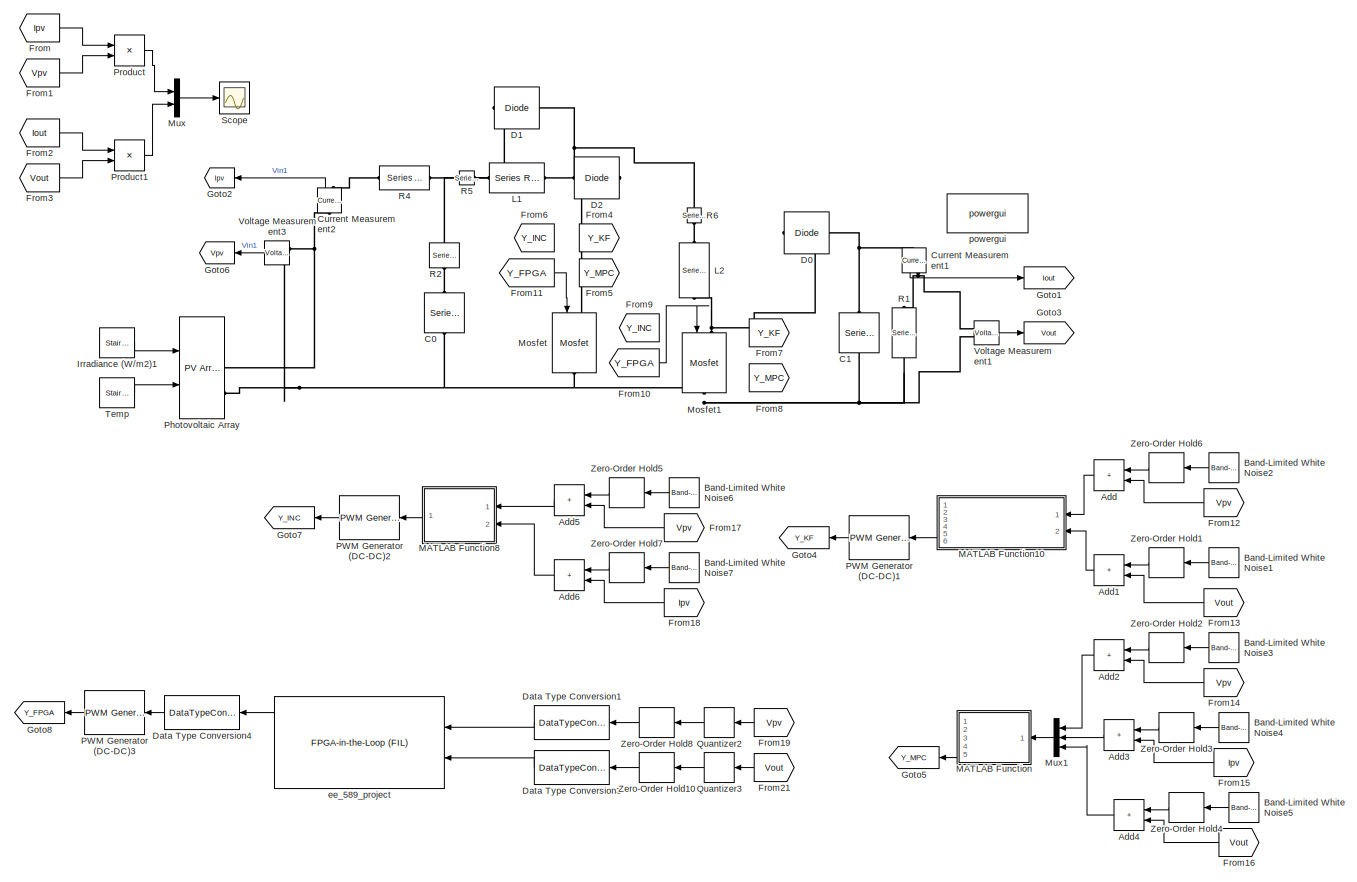
[diagram: root canvas - part 1/1, most of the canvas]
MODEL slx_83b59a19a257
KIND model
CONFIG AbsTol = auto
CONFIG EnableMultiTasking = off
CONFIG FixedStep = auto
CONFIG MaxStep = auto
CONFIG MinStep = auto
CONFIG RelTol = 1e-3
CONFIG SampleTimeConstraint = Unconstrained
CONFIG SolverName = VariableStepAuto
CONFIG StartTime = 0.0
CONFIG StopTime = 10.0
BLOCK [Reference]  Temp  REF=powerlib_meascontrol/Pulse & Signal
Generators/Stair
Generator
  NameLocation = top
  Ports = [0, 1]
  SourceBlock = powerlib_meascontrol/Pulse & Signal\nGenerators/Stair\nGenerator
  SourceProductBaseCode = PS
  SourceType = Stair Generator
BLOCK [Sum] Add
  IconShape = rectangular
  Ports = [2, 1]
BLOCK [Sum] Add1
  IconShape = rectangular
  Ports = [2, 1]
BLOCK [Sum] Add2
  IconShape = rectangular
  Ports = [2, 1]
BLOCK [Sum] Add3
  IconShape = rectangular
  Ports = [2, 1]
BLOCK [Sum] Add4
  IconShape = rectangular
  Ports = [2, 1]
BLOCK [Sum] Add5
  IconShape = rectangular
  Ports = [2, 1]
BLOCK [Sum] Add6
  IconShape = rectangular
  Ports = [2, 1]
BLOCK [Reference] Band-Limited White Noise1  REF=simulink/Sources/Band-Limited
White Noise
  Commented = on
  Ports = [0, 1]
  SourceBlock = simulink/Sources/Band-Limited\nWhite Noise
  SourceProductBaseCode = SL
  SourceType = Band-Limited White Noise.
BLOCK [Reference] Band-Limited White Noise2  REF=simulink/Sources/Band-Limited
White Noise
  Commented = on
  Ports = [0, 1]
  SourceBlock = simulink/Sources/Band-Limited\nWhite Noise
  SourceProductBaseCode = SL
  SourceType = Band-Limited White Noise.
BLOCK [Reference] Band-Limited White Noise3  REF=simulink/Sources/Band-Limited
White Noise
  Commented = on
  Ports = [0, 1]
  SourceBlock = simulink/Sources/Band-Limited\nWhite Noise
  SourceProductBaseCode = SL
  SourceType = Band-Limited White Noise.
BLOCK [Reference] Band-Limited White Noise4  REF=simulink/Sources/Band-Limited
White Noise
  Commented = on
  Ports = [0, 1]
  SourceBlock = simulink/Sources/Band-Limited\nWhite Noise
  SourceProductBaseCode = SL
  SourceType = Band-Limited White Noise.
BLOCK [Reference] Band-Limited White Noise5  REF=simulink/Sources/Band-Limited
White Noise
  Commented = on
  Ports = [0, 1]
  SourceBlock = simulink/Sources/Band-Limited\nWhite Noise
  SourceProductBaseCode = SL
  SourceType = Band-Limited White Noise.
BLOCK [Reference] Band-Limited White Noise6  REF=simulink/Sources/Band-Limited
White Noise
  Commented = on
  Ports = [0, 1]
  SourceBlock = simulink/Sources/Band-Limited\nWhite Noise
  SourceProductBaseCode = SL
  SourceType = Band-Limited White Noise.
BLOCK [Reference] Band-Limited White Noise7  REF=simulink/Sources/Band-Limited
White Noise
  Commented = on
  Ports = [0, 1]
  SourceBlock = simulink/Sources/Band-Limited\nWhite Noise
  SourceProductBaseCode = SL
  SourceType = Band-Limited White Noise.
BLOCK [Reference] C0  REF=powerlib/Elements/Series RLC Branch
  NameLocation = left
  Ports = [0, 0, 0, 0, 0, 1, 1]
  SourceBlock = powerlib/Elements/Series RLC Branch
  SourceProductBaseCode = PS
  SourceType = Series RLC Branch
BLOCK [Reference] C1  REF=powerlib/Elements/Series RLC Branch
  NameLocation = left
  Ports = [0, 0, 0, 0, 0, 1, 1]
  SourceBlock = powerlib/Elements/Series RLC Branch
  SourceProductBaseCode = PS
  SourceType = Series RLC Branch
BLOCK [Reference] Current Measurement1  REF=powerlib/Measurements/Current Measurement
  NameLocation = right
  Ports = [0, 1, 0, 0, 0, 1, 1]
  SourceBlock = powerlib/Measurements/Current Measurement
  SourceProductBaseCode = PS
  SourceType = Current Measurement
  UserDataPersistent = on
BLOCK [Reference] Current Measurement2  REF=powerlib/Measurements/Current Measurement
  NameLocation = right
  Ports = [0, 1, 0, 0, 0, 1, 1]
  SourceBlock = powerlib/Measurements/Current Measurement
  SourceProductBaseCode = PS
  SourceType = Current Measurement
  UserDataPersistent = on
BLOCK [Reference] D0  REF=powerlib/Power
Electronics/Diode
  Ports = [0, 0, 0, 0, 0, 1, 1]
  SourceBlock = powerlib/Power\nElectronics/Diode
  SourceProductBaseCode = PS
  SourceType = Diode
BLOCK [Reference] D1  REF=powerlib/Power
Electronics/Diode
  Ports = [0, 0, 0, 0, 0, 1, 1]
  SourceBlock = powerlib/Power\nElectronics/Diode
  SourceProductBaseCode = PS
  SourceType = Diode
BLOCK [Reference] D2  REF=powerlib/Power
Electronics/Diode
  Ports = [0, 0, 0, 0, 0, 1, 1]
  SourceBlock = powerlib/Power\nElectronics/Diode
  SourceProductBaseCode = PS
  SourceType = Diode
BLOCK [DataTypeConversion] Data Type Conversion1
  OutDataTypeStr = fixdt(1,32,16)
  RndMeth = Floor
  SaturateOnIntegerOverflow = off
BLOCK [DataTypeConversion] Data Type Conversion3
  OutDataTypeStr = fixdt(1,32,16)
  RndMeth = Floor
  SaturateOnIntegerOverflow = off
BLOCK [DataTypeConversion] Data Type Conversion4
  OutDataTypeStr = double
  RndMeth = Floor
  SaturateOnIntegerOverflow = off
BLOCK [From] From
  GotoTag = Ipv
BLOCK [From] From1
  GotoTag = Vpv
BLOCK [From] From10
  GotoTag = Y_FPGA
BLOCK [From] From11
  GotoTag = Y_FPGA
BLOCK [From] From12
  GotoTag = Vpv
BLOCK [From] From13
  GotoTag = Vout
BLOCK [From] From14
  GotoTag = Vpv
BLOCK [From] From15
  GotoTag = Ipv
BLOCK [From] From16
  GotoTag = Vout
BLOCK [From] From17
  GotoTag = Vpv
BLOCK [From] From18
  GotoTag = Ipv
BLOCK [From] From19
  GotoTag = Vpv
BLOCK [From] From2
  GotoTag = Iout
BLOCK [From] From21
  GotoTag = Vout
BLOCK [From] From3
  GotoTag = Vout
BLOCK [From] From4
  GotoTag = Y_KF
BLOCK [From] From5
  GotoTag = Y_MPC
BLOCK [From] From6
  GotoTag = Y_INC
BLOCK [From] From7
  GotoTag = Y_KF
BLOCK [From] From8
  GotoTag = Y_MPC
BLOCK [From] From9
  GotoTag = Y_INC
BLOCK [Goto] Goto1
  GotoTag = Iout
BLOCK [Goto] Goto2
  GotoTag = Ipv
BLOCK [Goto] Goto3
  GotoTag = Vout
BLOCK [Goto] Goto4
  GotoTag = Y_KF
BLOCK [Goto] Goto5
  GotoTag = Y_MPC
BLOCK [Goto] Goto6
  GotoTag = Vpv
BLOCK [Goto] Goto7
  GotoTag = Y_INC
BLOCK [Goto] Goto8
  GotoTag = Y_FPGA
BLOCK [Reference] Irradiance (W//m2)1  REF=powerlib_meascontrol/Pulse & Signal
Generators/Stair
Generator
  NameLocation = top
  Ports = [0, 1]
  SourceBlock = powerlib_meascontrol/Pulse & Signal\nGenerators/Stair\nGenerator
  SourceProductBaseCode = PS
  SourceType = Stair Generator
BLOCK [Reference] L1  REF=powerlib/Elements/Series RLC Branch
  NameLocation = top
  Ports = [0, 0, 0, 0, 0, 1, 1]
  SourceBlock = powerlib/Elements/Series RLC Branch
  SourceProductBaseCode = PS
  SourceType = Series RLC Branch
BLOCK [Reference] L2  REF=powerlib/Elements/Series RLC Branch
  NameLocation = right
  Ports = [0, 0, 0, 0, 0, 1, 1]
  SourceBlock = powerlib/Elements/Series RLC Branch
  SourceProductBaseCode = PS
  SourceType = Series RLC Branch
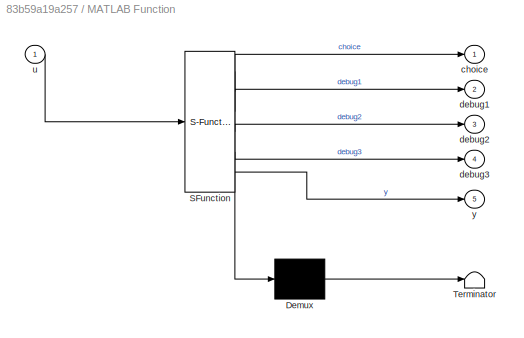
BLOCK [SubSystem] MATLAB Function
  ErrorFcn = Stateflow.Translate.translate
  PermitHierarchicalResolution = ExplicitOnly
  Ports = [1, 5]
  RequestExecContextInheritance = off
  SFBlockType = MATLAB Function
  SystemSampleTime = 15e-6
  TreatAsAtomicUnit = on
BLOCK [Demux] MATLAB Function/ Demux 
  Outputs = 1
  Ports = [1, 1]
BLOCK [S-Function] MATLAB Function/ SFunction 
  EnableBusSupport = on
  FunctionName = sf_sfun
  PortCounts = [1 6]
  Ports = [1, 6]
  SFcnIsStateOwnerBlock = off
  SFunctionDeploymentMode = off
  Tag = Stateflow S-Function 2
BLOCK [Terminator] MATLAB Function/ Terminator 
BLOCK [Outport] MATLAB Function/choice
BLOCK [Outport] MATLAB Function/debug1
  Port = 2
BLOCK [Outport] MATLAB Function/debug2
  Port = 3
BLOCK [Outport] MATLAB Function/debug3
  Port = 4
BLOCK [Inport] MATLAB Function/u
BLOCK [Outport] MATLAB Function/y
  Port = 5
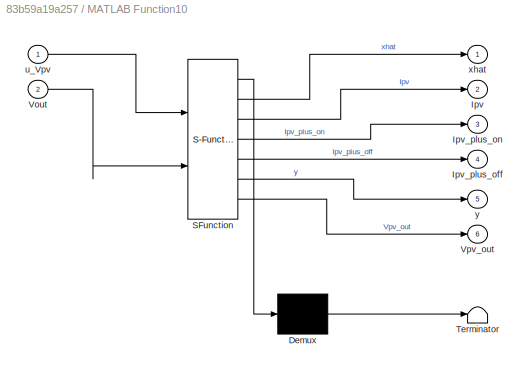
BLOCK [SubSystem] MATLAB Function10
  ErrorFcn = Stateflow.Translate.translate
  PermitHierarchicalResolution = ExplicitOnly
  Ports = [2, 6]
  RequestExecContextInheritance = off
  SFBlockType = MATLAB Function
  SystemSampleTime = 15e-6
  TreatAsAtomicUnit = on
BLOCK [Demux] MATLAB Function10/ Demux 
  Outputs = 1
  Ports = [1, 1]
BLOCK [S-Function] MATLAB Function10/ SFunction 
  EnableBusSupport = on
  FunctionName = sf_sfun
  PortCounts = [2 7]
  Ports = [2, 7]
  SFcnIsStateOwnerBlock = off
  SFunctionDeploymentMode = off
  Tag = Stateflow S-Function 11
BLOCK [Terminator] MATLAB Function10/ Terminator 
BLOCK [Outport] MATLAB Function10/Ipv
  Port = 2
BLOCK [Outport] MATLAB Function10/Ipv_plus_off
  Port = 4
BLOCK [Outport] MATLAB Function10/Ipv_plus_on
  Port = 3
BLOCK [Inport] MATLAB Function10/Vout
  Port = 2
BLOCK [Outport] MATLAB Function10/Vpv_out
  Port = 6
BLOCK [Inport] MATLAB Function10/u_Vpv
BLOCK [Outport] MATLAB Function10/xhat
BLOCK [Outport] MATLAB Function10/y
  Port = 5
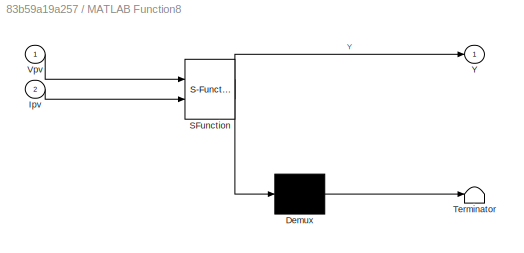
BLOCK [SubSystem] MATLAB Function8
  ErrorFcn = Stateflow.Translate.translate
  PermitHierarchicalResolution = ExplicitOnly
  Ports = [2, 1]
  RequestExecContextInheritance = off
  SFBlockType = MATLAB Function
  SystemSampleTime = 15e-6
  TreatAsAtomicUnit = on
BLOCK [Demux] MATLAB Function8/ Demux 
  Outputs = 1
  Ports = [1, 1]
BLOCK [S-Function] MATLAB Function8/ SFunction 
  EnableBusSupport = on
  FunctionName = sf_sfun
  PortCounts = [2 2]
  Ports = [2, 2]
  SFcnIsStateOwnerBlock = off
  SFunctionDeploymentMode = off
  Tag = Stateflow S-Function 9
BLOCK [Terminator] MATLAB Function8/ Terminator 
BLOCK [Inport] MATLAB Function8/Ipv
  Port = 2
BLOCK [Inport] MATLAB Function8/Vpv
BLOCK [Outport] MATLAB Function8/Y
BLOCK [Reference] Mosfet  REF=powerlib/Power
Electronics/Mosfet
  NameLocation = left
  Ports = [1, 0, 0, 0, 0, 1, 1]
  SourceBlock = powerlib/Power\nElectronics/Mosfet
  SourceProductBaseCode = PS
  SourceType = Mosfet
BLOCK [Reference] Mosfet1  REF=powerlib/Power
Electronics/Mosfet
  NameLocation = left
  Ports = [1, 0, 0, 0, 0, 1, 1]
  SourceBlock = powerlib/Power\nElectronics/Mosfet
  SourceProductBaseCode = PS
  SourceType = Mosfet
BLOCK [Mux] Mux
  DisplayOption = bar
  Inputs = 2
  Ports = [2, 1]
BLOCK [Mux] Mux1
  DisplayOption = bar
  Inputs = 3
  Ports = [3, 1]
BLOCK [Reference] PWM Generator (DC-DC)1  REF=powerlib_meascontrol/Pulse & Signal
Generators/PWM Generator
(DC-DC)
  NameLocation = top
  Ports = [1, 1]
  SourceBlock = powerlib_meascontrol/Pulse & Signal\nGenerators/PWM Generator\n(DC-DC)
  SourceProductBaseCode = PS
  SourceType = PWM Generator (DC-DC)
BLOCK [Reference] PWM Generator (DC-DC)2  REF=powerlib_meascontrol/Pulse & Signal
Generators/PWM Generator
(DC-DC)
  NameLocation = top
  Ports = [1, 1]
  SourceBlock = powerlib_meascontrol/Pulse & Signal\nGenerators/PWM Generator\n(DC-DC)
  SourceProductBaseCode = PS
  SourceType = PWM Generator (DC-DC)
BLOCK [Reference] PWM Generator (DC-DC)3  REF=powerlib_meascontrol/Pulse & Signal
Generators/PWM Generator
(DC-DC)
  NameLocation = top
  Ports = [1, 1]
  SourceBlock = powerlib_meascontrol/Pulse & Signal\nGenerators/PWM Generator\n(DC-DC)
  SourceProductBaseCode = PS
  SourceType = PWM Generator (DC-DC)
BLOCK [Reference] Photovoltaic Array  REF=re_lib/Solar/PV Array
  AttributesFormatString = %<ModuleName>\n%<Nser>-module string\n%<Npar> parallel strings
  Ports = [2, 1, 0, 0, 0, 0, 2]
  SourceBlock = re_lib/Solar/PV Array
  SourceProductBaseCode = PS
  SourceType = PV array
BLOCK [Product] Product
  Ports = [2, 1]
BLOCK [Product] Product1
  Ports = [2, 1]
BLOCK [Quantizer] Quantizer2
  QuantizationInterval = 15e-6
BLOCK [Quantizer] Quantizer3
  QuantizationInterval = 15e-6
BLOCK [Reference] R1  REF=powerlib/Elements/Series RLC Branch
  NameLocation = left
  Ports = [0, 0, 0, 0, 0, 1, 1]
  SourceBlock = powerlib/Elements/Series RLC Branch
  SourceProductBaseCode = PS
  SourceType = Series RLC Branch
BLOCK [Reference] R2  REF=powerlib/Elements/Series RLC Branch
  NameLocation = left
  Ports = [0, 0, 0, 0, 0, 1, 1]
  SourceBlock = powerlib/Elements/Series RLC Branch
  SourceProductBaseCode = PS
  SourceType = Series RLC Branch
BLOCK [Reference] R4  REF=powerlib/Elements/Series RLC Branch
  Ports = [0, 0, 0, 0, 0, 1, 1]
  SourceBlock = powerlib/Elements/Series RLC Branch
  SourceProductBaseCode = PS
  SourceType = Series RLC Branch
BLOCK [Reference] R5  REF=powerlib/Elements/Series RLC Branch
  Ports = [0, 0, 0, 0, 0, 1, 1]
  SourceBlock = powerlib/Elements/Series RLC Branch
  SourceProductBaseCode = PS
  SourceType = Series RLC Branch
BLOCK [Reference] R6  REF=powerlib/Elements/Series RLC Branch
  NameLocation = left
  Ports = [0, 0, 0, 0, 0, 1, 1]
  SourceBlock = powerlib/Elements/Series RLC Branch
  SourceProductBaseCode = PS
  SourceType = Series RLC Branch
BLOCK [Scope] Scope
  Floating = off
  NumInputPorts = 1
  Ports = [1]
  ScopeSpecificationString = Simulink.scopes.TimeScopeBlockCfg('CurrentConfiguration', extmgr.ConfigurationSet(extmgr.Configuration('Core','General UI',true),extmgr.Configuration('Core','Source UI',true),extmgr.Configuration('Sources','WiredSimulink',true),extmgr.Configuration('Visuals','Time Domain',true,'SerializedDisplays',{struct('MinYLimReal','-27.20201','MaxYLimReal','244.81812','YLabelReal','','MinYLimMag','0.00000','M...<+1392ch>
BLOCK [Reference] Voltage Measurement1  REF=powerlib/Measurements/Voltage Measurement
  Ports = [0, 1, 0, 0, 0, 2]
  SourceBlock = powerlib/Measurements/Voltage Measurement
  SourceProductBaseCode = PS
  SourceType = Voltage Measurement
  UserDataPersistent = on
BLOCK [Reference] Voltage Measurement3  REF=powerlib/Measurements/Voltage Measurement
  Ports = [0, 1, 0, 0, 0, 2]
  SourceBlock = powerlib/Measurements/Voltage Measurement
  SourceProductBaseCode = PS
  SourceType = Voltage Measurement
  UserDataPersistent = on
BLOCK [ZeroOrderHold] Zero-Order Hold1
  SampleTime = 15e-6
BLOCK [ZeroOrderHold] Zero-Order Hold10
  SampleTime = 200e-9
BLOCK [ZeroOrderHold] Zero-Order Hold2
  SampleTime = 15e-6
BLOCK [ZeroOrderHold] Zero-Order Hold3
  SampleTime = 15e-6
BLOCK [ZeroOrderHold] Zero-Order Hold4
  SampleTime = 15e-6
BLOCK [ZeroOrderHold] Zero-Order Hold5
  SampleTime = 15e-6
BLOCK [ZeroOrderHold] Zero-Order Hold6
  SampleTime = 15e-6
BLOCK [ZeroOrderHold] Zero-Order Hold7
  SampleTime = 15e-6
BLOCK [ZeroOrderHold] Zero-Order Hold8
  SampleTime = 200e-9
BLOCK [Reference] ee_589_project  REF=fillib/FPGA-in-the-Loop (FIL)
  Ports = [2, 3]
  SourceBlock = fillib/FPGA-in-the-Loop (FIL)
  SourceProductBaseCode = ES,HD
  SourceType = FPGA-in-the-Loop (FIL)
  UserDataPersistent = on
BLOCK [Reference] powergui  REF=powerlib/powergui
  Ports = []
  Priority = 1
  SourceBlock = powerlib/powergui
  SourceProductBaseCode = PS
  SourceType = PSB option menu block
LINE  Temp:1 -> Photovoltaic Array:2
LINE Add1:1 -> MATLAB Function10:2
LINE Add2:1 -> Mux1:1
LINE Add3:1 -> Mux1:2
LINE Add4:1 -> Mux1:3
LINE Add5:1 -> MATLAB Function8:1
LINE Add6:1 -> MATLAB Function8:2
LINE Add:1 -> MATLAB Function10:1
LINE Band-Limited White Noise1:1 -> Zero-Order Hold1:1
LINE Band-Limited White Noise2:1 -> Zero-Order Hold6:1
LINE Band-Limited White Noise3:1 -> Zero-Order Hold2:1
LINE Band-Limited White Noise4:1 -> Zero-Order Hold3:1
LINE Band-Limited White Noise5:1 -> Zero-Order Hold4:1
LINE Band-Limited White Noise6:1 -> Zero-Order Hold5:1
LINE Band-Limited White Noise7:1 -> Zero-Order Hold7:1
LINE Current Measurement1:1 -> Goto1:1
LINE Current Measurement2:1 -> Goto2:1
LINE Data Type Conversion1:1 -> ee_589_project:1
LINE Data Type Conversion3:1 -> ee_589_project:2
LINE Data Type Conversion4:1 -> PWM Generator (DC-DC)3:1
LINE From10:1 -> Mosfet1:1
LINE From11:1 -> Mosfet:1
LINE From12:1 -> Add:2
LINE From13:1 -> Add1:2
LINE From14:1 -> Add2:2
LINE From15:1 -> Add3:2
LINE From16:1 -> Add4:2
LINE From17:1 -> Add5:2
LINE From18:1 -> Add6:2
LINE From19:1 -> Quantizer2:1
LINE From1:1 -> Product:2
LINE From21:1 -> Quantizer3:1
LINE From2:1 -> Product1:1
LINE From3:1 -> Product1:2
LINE From:1 -> Product:1
LINE Irradiance (W//m2)1:1 -> Photovoltaic Array:1
LINE MATLAB Function10:5 -> PWM Generator (DC-DC)1:1
LINE MATLAB Function8:1 -> PWM Generator (DC-DC)2:1
LINE MATLAB Function:5 -> Goto5:1
LINE Mux1:1 -> MATLAB Function:1
LINE Mux:1 -> Scope:1
LINE PWM Generator (DC-DC)1:1 -> Goto4:1
LINE PWM Generator (DC-DC)2:1 -> Goto7:1
LINE PWM Generator (DC-DC)3:1 -> Goto8:1
LINE Product1:1 -> Mux:2
LINE Product:1 -> Mux:1
LINE Quantizer2:1 -> Zero-Order Hold8:1
LINE Quantizer3:1 -> Zero-Order Hold10:1
LINE Voltage Measurement1:1 -> Goto3:1
LINE Voltage Measurement3:1 -> Goto6:1
LINE Zero-Order Hold10:1 -> Data Type Conversion3:1
LINE Zero-Order Hold1:1 -> Add1:1
LINE Zero-Order Hold2:1 -> Add2:1
LINE Zero-Order Hold3:1 -> Add3:1
LINE Zero-Order Hold4:1 -> Add4:1
LINE Zero-Order Hold5:1 -> Add5:1
LINE Zero-Order Hold6:1 -> Add:1
LINE Zero-Order Hold7:1 -> Add6:1
LINE Zero-Order Hold8:1 -> Data Type Conversion1:1
LINE ee_589_project:1 -> Data Type Conversion4:1
PLINE C0:LConn1 -- R2:RConn1
PNET net1: C0:RConn1 -- C1:RConn1 -- Mosfet1:RConn1 -- Mosfet:RConn1 -- Photovoltaic Array:RConn2 -- R1:RConn1 -- Voltage Measurement1:LConn2 -- Voltage Measurement3:LConn2
PNET net2: C1:LConn1 -- Current Measurement1:LConn1 -- D0:RConn1
PNET net3: Current Measurement1:RConn1 -- R1:LConn1 -- Voltage Measurement1:LConn1
PNET net4: Current Measurement2:LConn1 -- Photovoltaic Array:RConn1 -- Voltage Measurement3:LConn1
PLINE Current Measurement2:RConn1 -- R4:LConn1
PNET net5: D0:LConn1 -- L2:RConn1 -- Mosfet1:LConn1
PNET net6: D1:LConn1 -- R2:LConn1 -- R4:RConn1 -- R5:LConn1
PNET net7: D1:RConn1 -- D2:RConn1 -- R6:LConn1
PNET net8: D2:LConn1 -- L1:RConn1 -- Mosfet:LConn1
PLINE L1:LConn1 -- R5:RConn1
PLINE L2:LConn1 -- R6:RConn1
note: PNET lines group multi-terminal physical nets as a canonical sorted terminal list (undirected conserving connections); 2-terminal nets keep the pairwise PLINE form
CHART MATLAB Function states=1 transitions=1
  STATE_LABEL 'eML_blk_kernel()'
  STATE_LABEL "SCRIPT:\nfunction [choice, debug1, debug2,debug3, y]= fcn(u)\nVpv=u(1);\nIpv=u(2);\nVout=u(3);\n\n%This module contains the MPC-MPPT Control Algorithm\n\n%The MPC module follows the flow chart of Fig. 8 in Referenced Research Paper\n\n%This MATLAB fn block's settings have been changed to have a sampling rate\n%of 15uS instead of being continous sample mode\n\n\n%prevent crazy simulation transients from breaking...<+2130ch>"
CHART MATLAB Function8 states=1 transitions=1
  STATE_LABEL 'eML_blk_kernel()'
  STATE_LABEL 'SCRIPT:\nfunction Y= fcn(Vpv, Ipv)\n\npersistent DC;\nif isempty(DC)\n    DC = 0;\nend\n\npersistent Vpv_t_1;\nif isempty(Vpv_t_1)\n    Vpv_t_1 = 0;\nend\npersistent Ipv_t_1;\nif isempty(Ipv_t_1)\n    Ipv_t_1 = 0;\nend\n\nDelta_V = Vpv - Vpv_t_1;\nDelta_I = Ipv - Ipv_t_1;\n\nif (Delta_V == 0 && Delta_I == 0) DC = DC; \nelseif (Delta_V == 0 && Delta_I > 0) DC = DC - .0005; \nelseif (Delta_V == 0 && Delta_I < 0) DC = DC ...<+902ch>'
CHART MATLAB Function10 states=1 transitions=1
  STATE_LABEL 'eML_blk_kernel()'
  STATE_LABEL 'SCRIPT:\nfunction [xhat, Ipv, Ipv_plus_on, Ipv_plus_off, y, Vpv_out]  = fcn(u_Vpv, Vout)\n%Kalman filter design using Small Signal Model of Circuit\n\n%The purpose of this module is to approximate Ipv and Vpv so that a sensor\n%is not needed for those variables, it also functions to remove noise and\n%could possibly replace the MCP module using its own predictions\n\n%Existing Model assumes Constant Vpv w...<+3608ch>'
CHART  states=0 transitions=0
CHART  states=0 transitions=0
CHART  states=0 transitions=0
